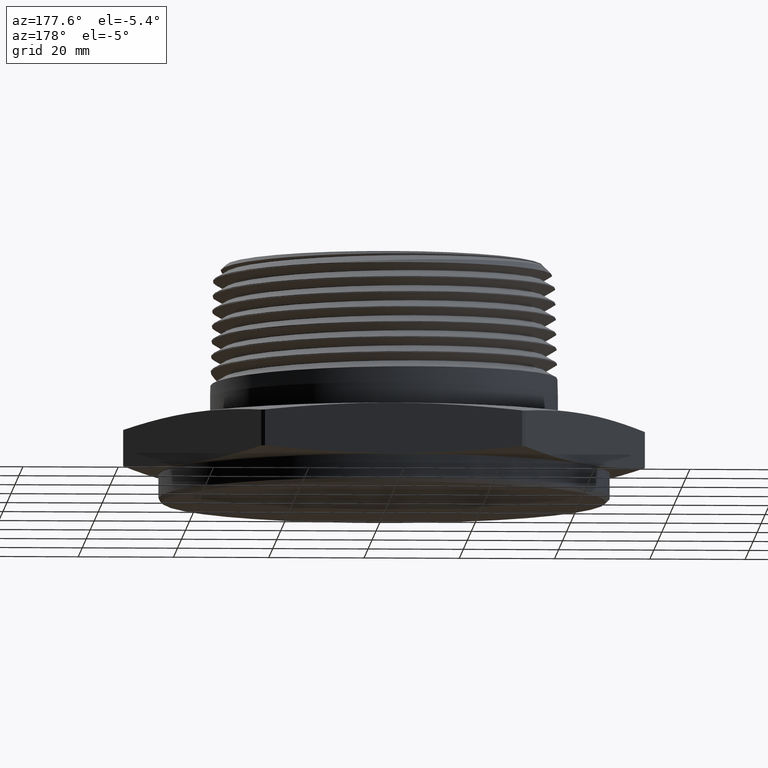
[diagram: clean part render]
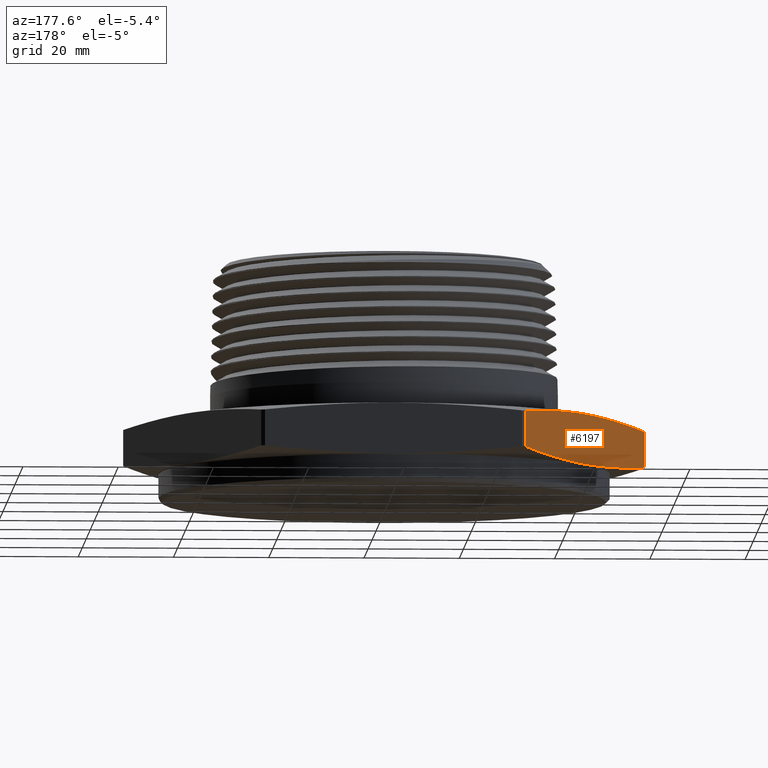
[diagram: same view with one face highlighted and labeled with its STEP entity id]
A machine part, auxiliary view. The second image highlights one B-rep face of the part: STEP entity #6197.
In plain terms, the highlighted planar face has unit normal (0.866, -0.5, 0).
Its self-contained STEP definition (entity closure, byte-faithful):
#28 = FACE_OUTER_BOUND ( 'NONE', #1156, .T. ) ;
#79 = VERTEX_POINT ( 'NONE', #1919 ) ;
#80 = VERTEX_POINT ( 'NONE', #1920 ) ;
#539 = CARTESIAN_POINT ( 'NONE',  ( -2.154992918645594300, 0.01744277495468578300, 0.3583450977630113800 ) ) ;
#540 = CARTESIAN_POINT ( 'NONE',  ( -2.066460370887299300, 0.1707856457955717100, 0.3768988438747940500 ) ) ;
#544 = CARTESIAN_POINT ( 'NONE',  ( -1.977927823129003600, 0.3241285166364571400, 0.3919305004217835700 ) ) ;
#545 = CARTESIAN_POINT ( 'NONE',  ( -1.800862727612413200, 0.6308142583182287900, 0.4124480746447293800 ) ) ;
#546 = CARTESIAN_POINT ( 'NONE',  ( -1.623797632095821600, 0.9375000000000000000, 0.4233007941218703300 ) ) ;
#547 = CARTESIAN_POINT ( 'NONE',  ( -1.446732536579231000, 1.244185741681772300, 0.4124480746447294300 ) ) ;
#548 = CARTESIAN_POINT ( 'NONE',  ( -1.269667441062640500, 1.550871483363543300, 0.3919305004217833500 ) ) ;
#549 = CARTESIAN_POINT ( 'NONE',  ( -1.181134893304345100, 1.704214354204428300, 0.3768988438747939400 ) ) ;
#550 = CARTESIAN_POINT ( 'NONE',  ( -1.092602345546049600, 1.857557225045315000, 0.3583450977630112700 ) ) ;
#793 = ORIENTED_EDGE ( 'NONE', *, *, #6512, .T. ) ;
#794 = ORIENTED_EDGE ( 'NONE', *, *, #6591, .T. ) ;
#795 = ORIENTED_EDGE ( 'NONE', *, *, #6498, .T. ) ;
#796 = ORIENTED_EDGE ( 'NONE', *, *, #6602, .T. ) ;
#819 = B_SPLINE_CURVE_WITH_KNOTS ( 'NONE', 3,
 ( #539, #540, #544, #545, #546, #547, #548, #549, #550 ),
 .UNSPECIFIED., .F., .F.,
 ( 4, 2, 1, 2, 4 ),
 ( 1.908621089976603600E-006, 0.01349426889945418800, 0.02698662917781840000, 0.04047898945618262600, 0.05397134973454684900 ),
 .UNSPECIFIED. ) ;
#824 = B_SPLINE_CURVE_WITH_KNOTS ( 'NONE', 3,
 ( #6257, #6252, #6253, #6258, #6259, #6260, #6261, #6262, #6263 ),
 .UNSPECIFIED., .F., .F.,
 ( 4, 2, 1, 2, 4 ),
 ( 1.908621089939341700E-006, 0.01349426889945416200, 0.02698662917781838300, 0.04047898945618259900, 0.05397134973454680700 ),
 .UNSPECIFIED. ) ;
#1156 = EDGE_LOOP ( 'NONE', ( #793, #794, #795, #796 ) ) ;
#1526 = CARTESIAN_POINT ( 'NONE',  ( -1.092602345546049400, 1.857557225045314300, 0.06165490223698859300 ) ) ;
#1528 = CARTESIAN_POINT ( 'NONE',  ( -2.154992918645594300, 0.01744277495468578300, 0.06165490223698859300 ) ) ;
#1919 = CARTESIAN_POINT ( 'NONE',  ( -2.154992918645594300, 0.01744277495468578300, 0.3583450977630113800 ) ) ;
#1920 = CARTESIAN_POINT ( 'NONE',  ( -1.092602345546049600, 1.857557225045315000, 0.3583450977630112700 ) ) ;
#2005 = LINE ( 'NONE', #7226, #2009 ) ;
#2009 = VECTOR ( 'NONE', #7232, 39.37007874015748100 ) ;
#2024 = LINE ( 'NONE', #7257, #2027 ) ;
#2027 = VECTOR ( 'NONE', #7258, 39.37007874015748100 ) ;
#5601 = AXIS2_PLACEMENT_3D ( 'NONE', #5747, #5751, #5752 ) ;
#5747 = CARTESIAN_POINT ( 'NONE',  ( -1.082531754730547700, 1.875000000000000000, 0.4199999999999999800 ) ) ;
#5749 = PLANE ( 'NONE',  #5601 ) ;
#5751 = DIRECTION ( 'NONE',  ( 0.8660254037844386000, -0.5000000000000001100, 0.0000000000000000000 ) ) ;
#5752 = DIRECTION ( 'NONE',  ( 0.5000000000000001100, 0.8660254037844386000, 0.0000000000000000000 ) ) ;
#6197 = ADVANCED_FACE ( 'NONE', ( #28 ), #5749, .F. ) ;
#6252 = CARTESIAN_POINT ( 'NONE',  ( -1.181134893304344800, 1.704214354204428600, 0.04310115612520577800 ) ) ;
#6253 = CARTESIAN_POINT ( 'NONE',  ( -1.269667441062640500, 1.550871483363542400, 0.02806949957821633700 ) ) ;
#6257 = CARTESIAN_POINT ( 'NONE',  ( -1.092602345546049400, 1.857557225045314300, 0.06165490223698859300 ) ) ;
#6258 = CARTESIAN_POINT ( 'NONE',  ( -1.446732536579231200, 1.244185741681771200, 0.007551925355270424300 ) ) ;
#6259 = CARTESIAN_POINT ( 'NONE',  ( -1.623797632095823000, 0.9375000000000000000, -0.003300794121870333800 ) ) ;
#6260 = CARTESIAN_POINT ( 'NONE',  ( -1.800862727612413000, 0.6308142583182285700, 0.007551925355270457300 ) ) ;
#6261 = CARTESIAN_POINT ( 'NONE',  ( -1.977927823129003400, 0.3241285166364571400, 0.02806949957821640000 ) ) ;
#6262 = CARTESIAN_POINT ( 'NONE',  ( -2.066460370887298800, 0.1707856457955714800, 0.04310115612520596500 ) ) ;
#6263 = CARTESIAN_POINT ( 'NONE',  ( -2.154992918645594300, 0.01744277495468578300, 0.06165490223698859300 ) ) ;
#6498 = EDGE_CURVE ( 'NONE', #79, #80, #819, .T. ) ;
#6512 = EDGE_CURVE ( 'NONE', #6689, #6691, #824, .T. ) ;
#6591 = EDGE_CURVE ( 'NONE', #6691, #79, #2005, .T. ) ;
#6602 = EDGE_CURVE ( 'NONE', #80, #6689, #2024, .T. ) ;
#6689 = VERTEX_POINT ( 'NONE', #1526 ) ;
#6691 = VERTEX_POINT ( 'NONE', #1528 ) ;
#7226 = CARTESIAN_POINT ( 'NONE',  ( -2.154992918645594300, 0.01744277495468578300, 6.666429389556766300E-017 ) ) ;
#7232 = DIRECTION ( 'NONE',  ( 1.254986547952384500E-016, 0.0000000000000000000, 1.000000000000000000 ) ) ;
#7257 = CARTESIAN_POINT ( 'NONE',  ( -1.092602345546049400, 1.857557225045314300, -6.666429389556766300E-017 ) ) ;
#7258 = DIRECTION ( 'NONE',  ( -1.254986547952384500E-016, -0.0000000000000000000, -1.000000000000000000 ) ) ;